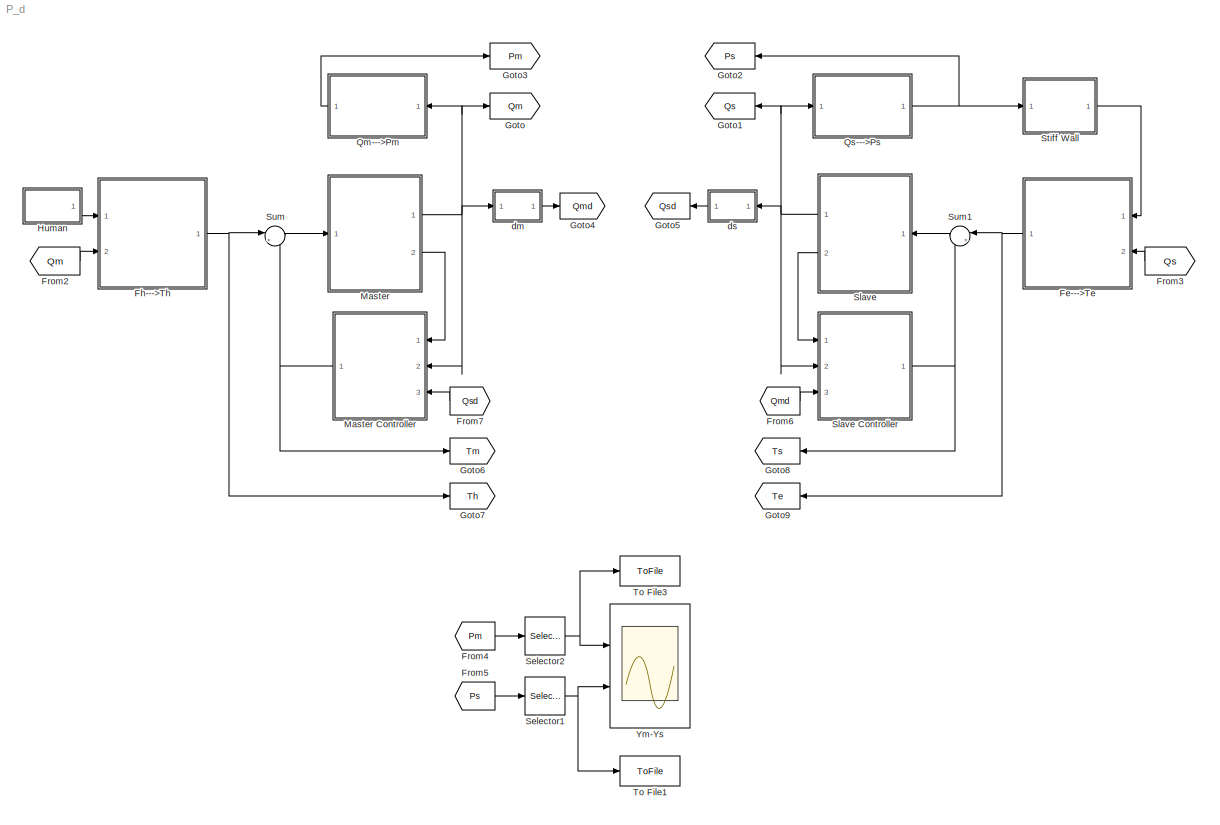
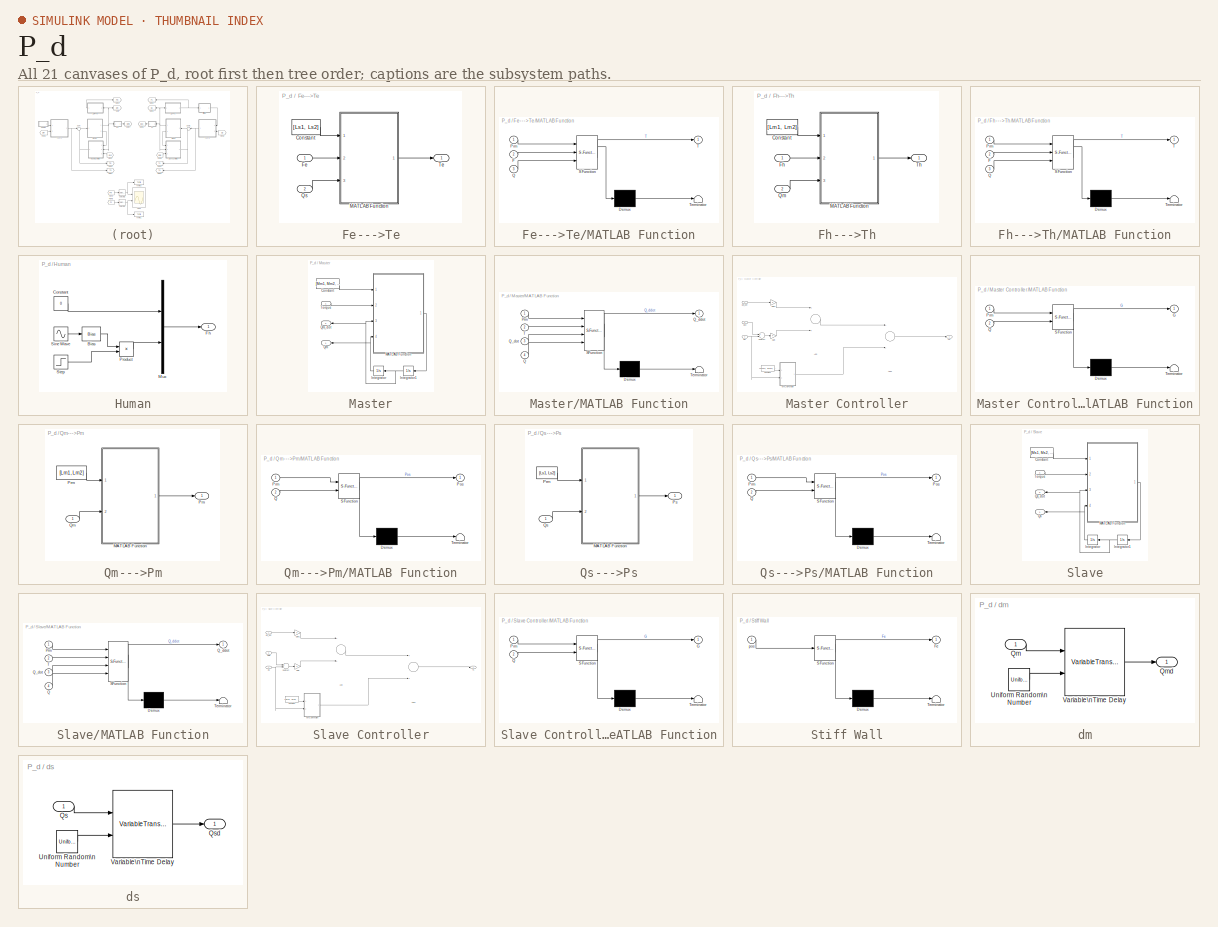
[diagram: thumbnail index - all 21 canvases of the model, root first then tree order]
MODEL P_d
KIND model
BLOCK [SubSystem] Fe--->Te
  Ports = [2, 1]
  RequestExecContextInheritance = off
  SID = 1
  Variant = off
BLOCK [Constant] Fe--->Te/Constant
  SID = 4
  Value = [Ls1, Ls2]
BLOCK [Inport] Fe--->Te/Fe
  IconDisplay = Port number
  SID = 2
BLOCK [SubSystem] Fe--->Te/MATLAB Function
  ErrorFcn = Stateflow.Translate.translate
  PermitHierarchicalResolution = ExplicitOnly
  Ports = [3, 1]
  RequestExecContextInheritance = off
  SFBlockType = MATLAB Function
  SID = 5
  TreatAsAtomicUnit = on
  Variant = off
BLOCK [Demux] Fe--->Te/MATLAB Function/ Demux 
  Outputs = 1
  Ports = [1, 1]
  SID = 5::9
BLOCK [S-Function] Fe--->Te/MATLAB Function/ SFunction 
  EnableBusSupport = on
  FunctionName = sf_sfun
  PortCounts = [3 2]
  Ports = [3, 2]
  SFunctionDeploymentMode = off
  SID = 5::8
  Tag = Stateflow S-Function P_d 7
BLOCK [Terminator] Fe--->Te/MATLAB Function/ Terminator 
  SID = 5::10
BLOCK [Inport] Fe--->Te/MATLAB Function/F
  IconDisplay = Port number
  Port = 2
  SID = 5::2
BLOCK [Inport] Fe--->Te/MATLAB Function/Prm
  IconDisplay = Port number
  SID = 5::1
BLOCK [Inport] Fe--->Te/MATLAB Function/Q
  IconDisplay = Port number
  Port = 3
  SID = 5::3
BLOCK [Outport] Fe--->Te/MATLAB Function/T
  IconDisplay = Port number
  SID = 5::7
BLOCK [Inport] Fe--->Te/Qs
  IconDisplay = Port number
  Port = 2
  SID = 3
BLOCK [Outport] Fe--->Te/Te
  IconDisplay = Port number
  SID = 6
BLOCK [SubSystem] Fh--->Th
  Ports = [2, 1]
  RequestExecContextInheritance = off
  SID = 7
  Variant = off
BLOCK [Constant] Fh--->Th/Constant
  SID = 10
  Value = [Lm1, Lm2]
BLOCK [Inport] Fh--->Th/Fh
  IconDisplay = Port number
  SID = 8
BLOCK [SubSystem] Fh--->Th/MATLAB Function
  ErrorFcn = Stateflow.Translate.translate
  PermitHierarchicalResolution = ExplicitOnly
  Ports = [3, 1]
  RequestExecContextInheritance = off
  SFBlockType = MATLAB Function
  SID = 11
  TreatAsAtomicUnit = on
  Variant = off
BLOCK [Demux] Fh--->Th/MATLAB Function/ Demux 
  Outputs = 1
  Ports = [1, 1]
  SID = 11::9
BLOCK [S-Function] Fh--->Th/MATLAB Function/ SFunction 
  EnableBusSupport = on
  FunctionName = sf_sfun
  PortCounts = [3 2]
  Ports = [3, 2]
  SFunctionDeploymentMode = off
  SID = 11::8
  Tag = Stateflow S-Function P_d 6
BLOCK [Terminator] Fh--->Th/MATLAB Function/ Terminator 
  SID = 11::10
BLOCK [Inport] Fh--->Th/MATLAB Function/F
  IconDisplay = Port number
  Port = 2
  SID = 11::2
BLOCK [Inport] Fh--->Th/MATLAB Function/Prm
  IconDisplay = Port number
  SID = 11::1
BLOCK [Inport] Fh--->Th/MATLAB Function/Q
  IconDisplay = Port number
  Port = 3
  SID = 11::3
BLOCK [Outport] Fh--->Th/MATLAB Function/T
  IconDisplay = Port number
  SID = 11::7
BLOCK [Inport] Fh--->Th/Qm
  IconDisplay = Port number
  Port = 2
  SID = 9
BLOCK [Outport] Fh--->Th/Th
  IconDisplay = Port number
  SID = 12
BLOCK [From] From2
  GotoTag = Qm
  SID = 21
BLOCK [From] From3
  GotoTag = Qs
  SID = 22
BLOCK [From] From4
  GotoTag = Pm
  SID = 23
BLOCK [From] From5
  GotoTag = Ps
  SID = 24
BLOCK [From] From6
  GotoTag = Qmd
  SID = 25
BLOCK [From] From7
  GotoTag = Qsd
  SID = 26
BLOCK [Goto] Goto
  GotoTag = Qm
  SID = 27
BLOCK [Goto] Goto1
  GotoTag = Qs
  SID = 28
BLOCK [Goto] Goto2
  GotoTag = Ps
  SID = 29
BLOCK [Goto] Goto3
  GotoTag = Pm
  SID = 30
BLOCK [Goto] Goto4
  GotoTag = Qmd
  SID = 31
BLOCK [Goto] Goto5
  GotoTag = Qsd
  SID = 32
BLOCK [Goto] Goto6
  GotoTag = Tm
  SID = 33
BLOCK [Goto] Goto7
  GotoTag = Th
  SID = 34
BLOCK [Goto] Goto8
  GotoTag = Ts
  SID = 35
BLOCK [Goto] Goto9
  GotoTag = Te
  SID = 36
BLOCK [SubSystem] Human
  Ports = [0, 1]
  RequestExecContextInheritance = off
  SID = 37
  Variant = off
BLOCK [Bias] Human/Bias
  Bias = 0.1
  SID = 38
  SaturateOnIntegerOverflow = off
BLOCK [Constant] Human/Constant
  SID = 39
  Value = 0
BLOCK [Outport] Human/Fh
  IconDisplay = Port number
  SID = 44
BLOCK [Mux] Human/Mux
  DisplayOption = bar
  Inputs = 2
  Ports = [2, 1]
  SID = 40
BLOCK [Product] Human/Product
  InputSameDT = off
  OutDataTypeStr = Inherit: Inherit via internal rule
  Ports = [2, 1]
  RndMeth = Floor
  SID = 41
  SaturateOnIntegerOverflow = off
BLOCK [Sin] Human/Sine Wave
  Amplitude = 0.4
  Frequency = pi/5
  Ports = [0, 1]
  SID = 42
  SampleTime = 0
BLOCK [Step] Human/Step
  After = 0
  Before = 1
  SID = 43
  SampleTime = 0
  Time = 100
BLOCK [SubSystem] Master
  Ports = [1, 2]
  RequestExecContextInheritance = off
  SID = 45
  Variant = off
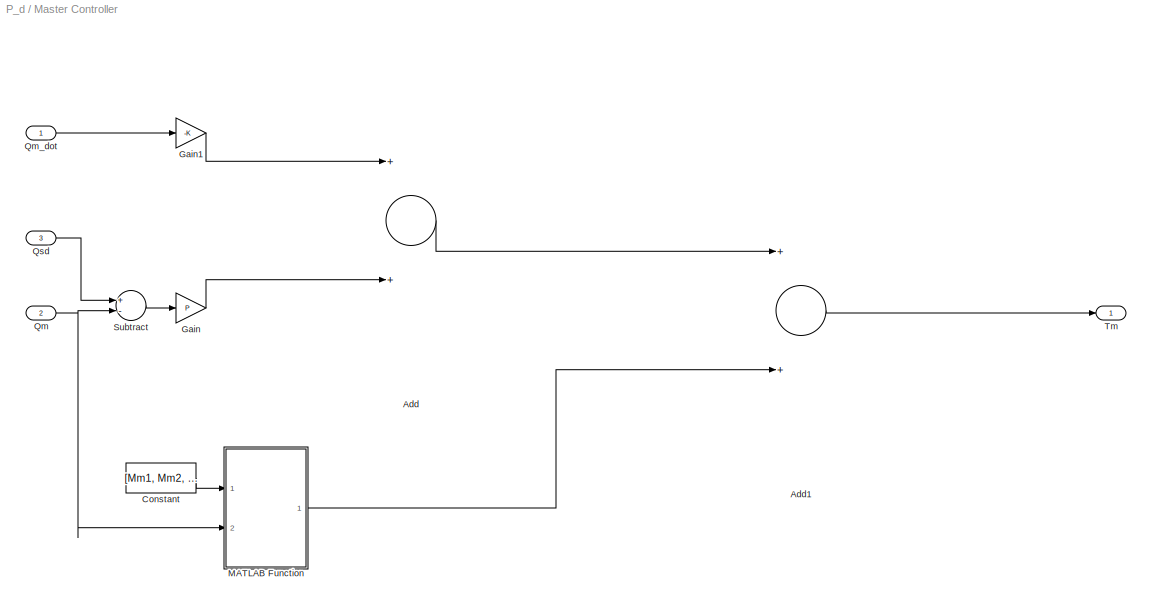
BLOCK [SubSystem] Master Controller
  Ports = [3, 1]
  RequestExecContextInheritance = off
  SID = 53
  Variant = off
BLOCK [Sum] Master Controller/Add
  InputSameDT = off
  OutDataTypeStr = Inherit: Inherit via internal rule
  Ports = [2, 1]
  SID = 57
  SaturateOnIntegerOverflow = off
BLOCK [Sum] Master Controller/Add1
  InputSameDT = off
  OutDataTypeStr = Inherit: Inherit via internal rule
  Ports = [2, 1]
  SID = 58
  SaturateOnIntegerOverflow = off
BLOCK [Constant] Master Controller/Constant
  SID = 59
  Value = [Mm1, Mm2, Lm1, Lm2]
BLOCK [Gain] Master Controller/Gain
  Gain = P
  Multiplication = Matrix(K*u) (u vector)
  OutDataTypeStr = Inherit: Inherit via internal rule
  ParamDataTypeStr = Inherit: Inherit via internal rule
  SID = 63
  SaturateOnIntegerOverflow = off
BLOCK [Gain] Master Controller/Gain1
  Gain = -K
  Multiplication = Matrix(K*u) (u vector)
  OutDataTypeStr = Inherit: Inherit via internal rule
  ParamDataTypeStr = Inherit: Inherit via internal rule
  SID = 64
  SaturateOnIntegerOverflow = off
BLOCK [SubSystem] Master Controller/MATLAB Function
  ErrorFcn = Stateflow.Translate.translate
  PermitHierarchicalResolution = ExplicitOnly
  Ports = [2, 1]
  RequestExecContextInheritance = off
  SFBlockType = MATLAB Function
  SID = 65
  TreatAsAtomicUnit = on
  Variant = off
BLOCK [Demux] Master Controller/MATLAB Function/ Demux 
  Outputs = 1
  Ports = [1, 1]
  SID = 65::17
BLOCK [S-Function] Master Controller/MATLAB Function/ SFunction 
  EnableBusSupport = on
  FunctionName = sf_sfun
  PortCounts = [2 2]
  Ports = [2, 2]
  SFunctionDeploymentMode = off
  SID = 65::16
  Tag = Stateflow S-Function P_d 8
BLOCK [Terminator] Master Controller/MATLAB Function/ Terminator 
  SID = 65::18
BLOCK [Outport] Master Controller/MATLAB Function/G
  IconDisplay = Port number
  SID = 65::5
BLOCK [Inport] Master Controller/MATLAB Function/Prm
  IconDisplay = Port number
  SID = 65::1
BLOCK [Inport] Master Controller/MATLAB Function/Q
  IconDisplay = Port number
  Port = 2
  SID = 65::19
BLOCK [Inport] Master Controller/Qm
  IconDisplay = Port number
  Port = 2
  SID = 55
BLOCK [Inport] Master Controller/Qm_dot
  IconDisplay = Port number
  SID = 54
BLOCK [Inport] Master Controller/Qsd
  IconDisplay = Port number
  Port = 3
  SID = 56
BLOCK [Sum] Master Controller/Subtract
  InputSameDT = off
  Inputs = +-
  OutDataTypeStr = Inherit: Inherit via internal rule
  Ports = [2, 1]
  SID = 75
  SaturateOnIntegerOverflow = off
BLOCK [Outport] Master Controller/Tm
  IconDisplay = Port number
  SID = 82
BLOCK [Constant] Master/Constant
  SID = 47
  Value = [Mm1, Mm2, Lm1, Lm2]
BLOCK [Integrator] Master/Integrator
  InitialCondition = q0
  Ports = [1, 1]
  SID = 48
BLOCK [Integrator] Master/Integrator1
  InitialCondition = v0
  Ports = [1, 1]
  SID = 49
BLOCK [SubSystem] Master/MATLAB Function
  ErrorFcn = Stateflow.Translate.translate
  PermitHierarchicalResolution = ExplicitOnly
  Ports = [4, 1]
  RequestExecContextInheritance = off
  SFBlockType = MATLAB Function
  SID = 50
  TreatAsAtomicUnit = on
  Variant = off
BLOCK [Demux] Master/MATLAB Function/ Demux 
  Outputs = 1
  Ports = [1, 1]
  SID = 50::10
BLOCK [S-Function] Master/MATLAB Function/ SFunction 
  EnableBusSupport = on
  FunctionName = sf_sfun
  PortCounts = [4 2]
  Ports = [4, 2]
  SFunctionDeploymentMode = off
  SID = 50::9
  Tag = Stateflow S-Function P_d 1
BLOCK [Terminator] Master/MATLAB Function/ Terminator 
  SID = 50::11
BLOCK [Inport] Master/MATLAB Function/Prm
  IconDisplay = Port number
  SID = 50::1
BLOCK [Inport] Master/MATLAB Function/Q
  IconDisplay = Port number
  Port = 4
  SID = 50::4
BLOCK [Outport] Master/MATLAB Function/Q_ddot
  IconDisplay = Port number
  SID = 50::8
BLOCK [Inport] Master/MATLAB Function/Q_dot
  IconDisplay = Port number
  Port = 3
  SID = 50::3
BLOCK [Inport] Master/MATLAB Function/T
  IconDisplay = Port number
  Port = 2
  SID = 50::2
BLOCK [Outport] Master/Qm
  IconDisplay = Port number
  SID = 51
BLOCK [Outport] Master/Qm_dot
  IconDisplay = Port number
  Port = 2
  SID = 52
BLOCK [Inport] Master/Torque
  IconDisplay = Port number
  SID = 46
BLOCK [SubSystem] Qm--->Pm
  Ports = [1, 1]
  RequestExecContextInheritance = off
  SID = 83
  Variant = off
BLOCK [SubSystem] Qm--->Pm/MATLAB Function
  ErrorFcn = Stateflow.Translate.translate
  PermitHierarchicalResolution = ExplicitOnly
  Ports = [2, 1]
  RequestExecContextInheritance = off
  SFBlockType = MATLAB Function
  SID = 85
  TreatAsAtomicUnit = on
  Variant = off
BLOCK [Demux] Qm--->Pm/MATLAB Function/ Demux 
  Outputs = 1
  Ports = [1, 1]
  SID = 85::8
BLOCK [S-Function] Qm--->Pm/MATLAB Function/ SFunction 
  EnableBusSupport = on
  FunctionName = sf_sfun
  PortCounts = [2 2]
  Ports = [2, 2]
  SFunctionDeploymentMode = off
  SID = 85::7
  Tag = Stateflow S-Function P_d 4
BLOCK [Terminator] Qm--->Pm/MATLAB Function/ Terminator 
  SID = 85::9
BLOCK [Outport] Qm--->Pm/MATLAB Function/Pos
  IconDisplay = Port number
  SID = 85::6
BLOCK [Inport] Qm--->Pm/MATLAB Function/Prm
  IconDisplay = Port number
  SID = 85::1
BLOCK [Inport] Qm--->Pm/MATLAB Function/Q
  IconDisplay = Port number
  Port = 2
  SID = 85::2
BLOCK [Outport] Qm--->Pm/Pm
  IconDisplay = Port number
  SID = 87
BLOCK [Constant] Qm--->Pm/Prm
  SID = 86
  Value = [Lm1, Lm2]
BLOCK [Inport] Qm--->Pm/Qm
  IconDisplay = Port number
  SID = 84
BLOCK [SubSystem] Qs--->Ps
  Ports = [1, 1]
  RequestExecContextInheritance = off
  SID = 89
  Variant = off
BLOCK [SubSystem] Qs--->Ps/MATLAB Function
  ErrorFcn = Stateflow.Translate.translate
  PermitHierarchicalResolution = ExplicitOnly
  Ports = [2, 1]
  RequestExecContextInheritance = off
  SFBlockType = MATLAB Function
  SID = 91
  TreatAsAtomicUnit = on
  Variant = off
BLOCK [Demux] Qs--->Ps/MATLAB Function/ Demux 
  Outputs = 1
  Ports = [1, 1]
  SID = 91::8
BLOCK [S-Function] Qs--->Ps/MATLAB Function/ SFunction 
  EnableBusSupport = on
  FunctionName = sf_sfun
  PortCounts = [2 2]
  Ports = [2, 2]
  SFunctionDeploymentMode = off
  SID = 91::7
  Tag = Stateflow S-Function P_d 5
BLOCK [Terminator] Qs--->Ps/MATLAB Function/ Terminator 
  SID = 91::9
BLOCK [Outport] Qs--->Ps/MATLAB Function/Pos
  IconDisplay = Port number
  SID = 91::6
BLOCK [Inport] Qs--->Ps/MATLAB Function/Prm
  IconDisplay = Port number
  SID = 91::1
BLOCK [Inport] Qs--->Ps/MATLAB Function/Q
  IconDisplay = Port number
  Port = 2
  SID = 91::2
BLOCK [Constant] Qs--->Ps/Prm
  SID = 92
  Value = [Ls1, Ls2]
BLOCK [Outport] Qs--->Ps/Ps
  IconDisplay = Port number
  SID = 93
BLOCK [Inport] Qs--->Ps/Qs
  IconDisplay = Port number
  SID = 90
BLOCK [Selector] Selector1
  IndexOptions = Index vector (dialog)
  Indices = [2]
  InputPortWidth = 2
  OutputSizes = 1
  Ports = [1, 1]
  SID = 165
BLOCK [Selector] Selector2
  IndexOptions = Index vector (dialog)
  Indices = [2]
  InputPortWidth = 2
  OutputSizes = 1
  Ports = [1, 1]
  SID = 97
BLOCK [SubSystem] Slave
  Ports = [1, 2]
  RequestExecContextInheritance = off
  SID = 102
  Variant = off
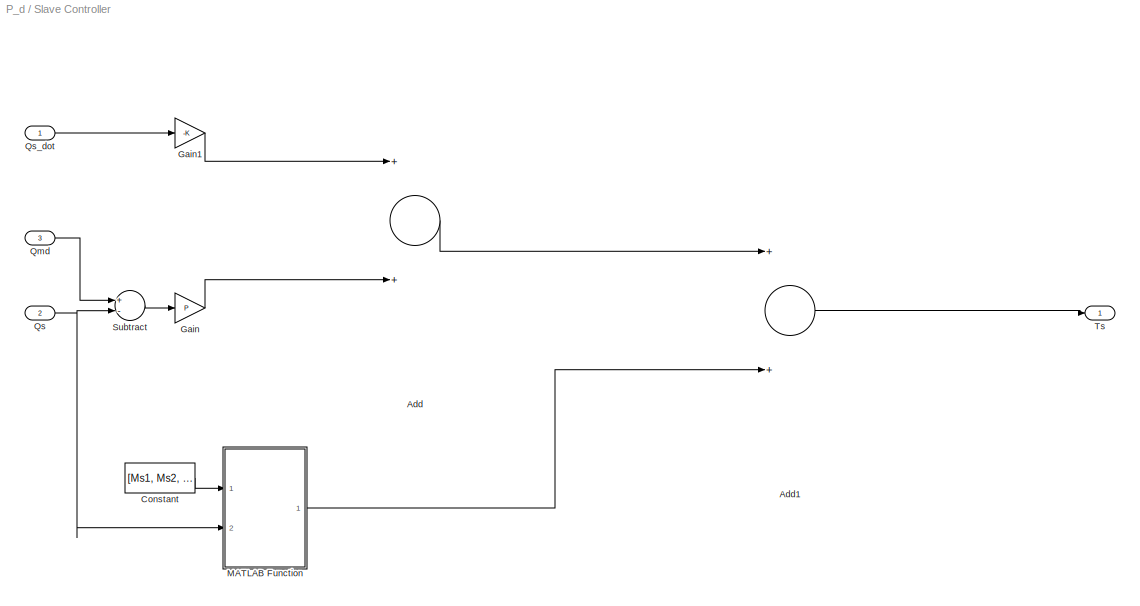
BLOCK [SubSystem] Slave Controller
  Ports = [3, 1]
  RequestExecContextInheritance = off
  SID = 110
  Variant = off
BLOCK [Sum] Slave Controller/Add
  InputSameDT = off
  OutDataTypeStr = Inherit: Inherit via internal rule
  Ports = [2, 1]
  SID = 114
  SaturateOnIntegerOverflow = off
BLOCK [Sum] Slave Controller/Add1
  InputSameDT = off
  OutDataTypeStr = Inherit: Inherit via internal rule
  Ports = [2, 1]
  SID = 115
  SaturateOnIntegerOverflow = off
BLOCK [Constant] Slave Controller/Constant
  SID = 116
  Value = [Ms1, Ms2, Ls1, Ls2]
BLOCK [Gain] Slave Controller/Gain
  Gain = P
  Multiplication = Matrix(K*u) (u vector)
  OutDataTypeStr = Inherit: Inherit via internal rule
  ParamDataTypeStr = Inherit: Inherit via internal rule
  SID = 120
  SaturateOnIntegerOverflow = off
BLOCK [Gain] Slave Controller/Gain1
  Gain = -K
  Multiplication = Matrix(K*u) (u vector)
  OutDataTypeStr = Inherit: Inherit via internal rule
  ParamDataTypeStr = Inherit: Inherit via internal rule
  SID = 121
  SaturateOnIntegerOverflow = off
BLOCK [SubSystem] Slave Controller/MATLAB Function
  ErrorFcn = Stateflow.Translate.translate
  PermitHierarchicalResolution = ExplicitOnly
  Ports = [2, 1]
  RequestExecContextInheritance = off
  SFBlockType = MATLAB Function
  SID = 122
  TreatAsAtomicUnit = on
  Variant = off
BLOCK [Demux] Slave Controller/MATLAB Function/ Demux 
  Outputs = 1
  Ports = [1, 1]
  SID = 122::17
BLOCK [S-Function] Slave Controller/MATLAB Function/ SFunction 
  EnableBusSupport = on
  FunctionName = sf_sfun
  PortCounts = [2 2]
  Ports = [2, 2]
  SFunctionDeploymentMode = off
  SID = 122::16
  Tag = Stateflow S-Function P_d 9
BLOCK [Terminator] Slave Controller/MATLAB Function/ Terminator 
  SID = 122::18
BLOCK [Outport] Slave Controller/MATLAB Function/G
  IconDisplay = Port number
  SID = 122::5
BLOCK [Inport] Slave Controller/MATLAB Function/Prm
  IconDisplay = Port number
  SID = 122::1
BLOCK [Inport] Slave Controller/MATLAB Function/Q
  IconDisplay = Port number
  Port = 2
  SID = 122::19
BLOCK [Inport] Slave Controller/Qmd
  IconDisplay = Port number
  Port = 3
  SID = 113
BLOCK [Inport] Slave Controller/Qs
  IconDisplay = Port number
  Port = 2
  SID = 112
BLOCK [Inport] Slave Controller/Qs_dot
  IconDisplay = Port number
  SID = 111
BLOCK [Sum] Slave Controller/Subtract
  InputSameDT = off
  Inputs = +-
  OutDataTypeStr = Inherit: Inherit via internal rule
  Ports = [2, 1]
  SID = 132
  SaturateOnIntegerOverflow = off
BLOCK [Outport] Slave Controller/Ts
  IconDisplay = Port number
  SID = 139
BLOCK [Constant] Slave/Constant
  SID = 104
  Value = [Ms1, Ms2, Ls1, Ls2]
BLOCK [Integrator] Slave/Integrator
  InitialCondition = q0
  Ports = [1, 1]
  SID = 105
BLOCK [Integrator] Slave/Integrator1
  InitialCondition = v0
  Ports = [1, 1]
  SID = 106
BLOCK [SubSystem] Slave/MATLAB Function
  ErrorFcn = Stateflow.Translate.translate
  PermitHierarchicalResolution = ExplicitOnly
  Ports = [4, 1]
  RequestExecContextInheritance = off
  SFBlockType = MATLAB Function
  SID = 107
  TreatAsAtomicUnit = on
  Variant = off
BLOCK [Demux] Slave/MATLAB Function/ Demux 
  Outputs = 1
  Ports = [1, 1]
  SID = 107::10
BLOCK [S-Function] Slave/MATLAB Function/ SFunction 
  EnableBusSupport = on
  FunctionName = sf_sfun
  PortCounts = [4 2]
  Ports = [4, 2]
  SFunctionDeploymentMode = off
  SID = 107::9
  Tag = Stateflow S-Function P_d 3
BLOCK [Terminator] Slave/MATLAB Function/ Terminator 
  SID = 107::11
BLOCK [Inport] Slave/MATLAB Function/Prm
  IconDisplay = Port number
  SID = 107::1
BLOCK [Inport] Slave/MATLAB Function/Q
  IconDisplay = Port number
  Port = 4
  SID = 107::4
BLOCK [Outport] Slave/MATLAB Function/Q_ddot
  IconDisplay = Port number
  SID = 107::8
BLOCK [Inport] Slave/MATLAB Function/Q_dot
  IconDisplay = Port number
  Port = 3
  SID = 107::3
BLOCK [Inport] Slave/MATLAB Function/T
  IconDisplay = Port number
  Port = 2
  SID = 107::2
BLOCK [Outport] Slave/Qs
  IconDisplay = Port number
  SID = 108
BLOCK [Outport] Slave/Qs_dot
  IconDisplay = Port number
  Port = 2
  SID = 109
BLOCK [Inport] Slave/Torque
  IconDisplay = Port number
  SID = 103
BLOCK [SubSystem] Stiff Wall
  ErrorFcn = Stateflow.Translate.translate
  PermitHierarchicalResolution = ExplicitOnly
  Ports = [1, 1]
  RequestExecContextInheritance = off
  SFBlockType = MATLAB Function
  SID = 140
  TreatAsAtomicUnit = on
  Variant = off
BLOCK [Demux] Stiff Wall/ Demux 
  Outputs = 1
  Ports = [1, 1]
  SID = 140::7
BLOCK [S-Function] Stiff Wall/ SFunction 
  EnableBusSupport = on
  FunctionName = sf_sfun
  PortCounts = [1 2]
  Ports = [1, 2]
  SFunctionDeploymentMode = off
  SID = 140::6
  Tag = Stateflow S-Function P_d 2
BLOCK [Terminator] Stiff Wall/ Terminator 
  SID = 140::8
BLOCK [Outport] Stiff Wall/Fe
  IconDisplay = Port number
  SID = 140::5
BLOCK [Inport] Stiff Wall/pos
  IconDisplay = Port number
  SID = 140::1
BLOCK [Sum] Sum
  IconShape = round
  InputSameDT = off
  Inputs = |++
  OutDataTypeStr = Inherit: Inherit via internal rule
  Ports = [2, 1]
  SID = 141
  SaturateOnIntegerOverflow = off
BLOCK [Sum] Sum1
  IconShape = round
  InputSameDT = off
  Inputs = |++
  OutDataTypeStr = Inherit: Inherit via internal rule
  Ports = [2, 1]
  SID = 142
  SaturateOnIntegerOverflow = off
BLOCK [ToFile] To File1
  Filename = Yss.mat
  MatrixName = Yss
  Ports = [1]
  SID = 166
  SaveFormat = Timeseries
BLOCK [ToFile] To File3
  Filename = Yms.mat
  MatrixName = Yms
  Ports = [1]
  SID = 148
  SaveFormat = Timeseries
BLOCK [Scope] Ym-Ys
  NumInputPorts = 2
  Ports = [2]
  SID = 154
  ScopeSpecificationString = C++SS(StrPVP('SaveName','ScopeData5'))
BLOCK [SubSystem] dm
  Ports = [1, 1]
  RequestExecContextInheritance = off
  SID = 155
  Variant = off
BLOCK [Inport] dm/Qm
  IconDisplay = Port number
  SID = 156
BLOCK [Outport] dm/Qmd
  IconDisplay = Port number
  SID = 159
BLOCK [UniformRandomNumber] dm/Uniform Random\nNumber
  Maximum = Dm
  Minimum = 0
  SID = 157
  SampleTime = 0.1
BLOCK [VariableTransportDelay] dm/Variable\nTime Delay
  MaximumDelay = Dm
  Ports = [2, 1]
  SID = 158
BLOCK [SubSystem] ds
  Ports = [1, 1]
  RequestExecContextInheritance = off
  SID = 160
  Variant = off
BLOCK [Inport] ds/Qs
  IconDisplay = Port number
  SID = 161
BLOCK [Outport] ds/Qsd
  IconDisplay = Port number
  SID = 164
BLOCK [UniformRandomNumber] ds/Uniform Random\nNumber
  Maximum = Ds
  Minimum = 0
  SID = 162
  SampleTime = 0.1
BLOCK [VariableTransportDelay] ds/Variable\nTime Delay
  MaximumDelay = Ds
  Ports = [2, 1]
  SID = 163
LINE Fe--->Te/Constant:1 -> Fe--->Te/MATLAB Function:1
LINE Fe--->Te/Fe:1 -> Fe--->Te/MATLAB Function:2
LINE Fe--->Te/MATLAB Function/ Demux :1 -> Fe--->Te/MATLAB Function/ Terminator :1
LINE Fe--->Te/MATLAB Function/ SFunction :1 -> Fe--->Te/MATLAB Function/ Demux :1
LINE Fe--->Te/MATLAB Function/ SFunction :2 -> Fe--->Te/MATLAB Function/T:1
LINE Fe--->Te/MATLAB Function/F:1 -> Fe--->Te/MATLAB Function/ SFunction :2
LINE Fe--->Te/MATLAB Function/Prm:1 -> Fe--->Te/MATLAB Function/ SFunction :1
LINE Fe--->Te/MATLAB Function/Q:1 -> Fe--->Te/MATLAB Function/ SFunction :3
LINE Fe--->Te/MATLAB Function:1 -> Fe--->Te/Te:1
LINE Fe--->Te/Qs:1 -> Fe--->Te/MATLAB Function:3
NET Fe--->Te:1 -> Goto9:1, Sum1:1
LINE Fh--->Th/Constant:1 -> Fh--->Th/MATLAB Function:1
LINE Fh--->Th/Fh:1 -> Fh--->Th/MATLAB Function:2
LINE Fh--->Th/MATLAB Function/ Demux :1 -> Fh--->Th/MATLAB Function/ Terminator :1
LINE Fh--->Th/MATLAB Function/ SFunction :1 -> Fh--->Th/MATLAB Function/ Demux :1
LINE Fh--->Th/MATLAB Function/ SFunction :2 -> Fh--->Th/MATLAB Function/T:1
LINE Fh--->Th/MATLAB Function/F:1 -> Fh--->Th/MATLAB Function/ SFunction :2
LINE Fh--->Th/MATLAB Function/Prm:1 -> Fh--->Th/MATLAB Function/ SFunction :1
LINE Fh--->Th/MATLAB Function/Q:1 -> Fh--->Th/MATLAB Function/ SFunction :3
LINE Fh--->Th/MATLAB Function:1 -> Fh--->Th/Th:1
LINE Fh--->Th/Qm:1 -> Fh--->Th/MATLAB Function:3
NET Fh--->Th:1 -> Goto7:1, Sum:1
LINE From2:1 -> Fh--->Th:2
LINE From3:1 -> Fe--->Te:2
LINE From4:1 -> Selector2:1
LINE From5:1 -> Selector1:1
LINE From6:1 -> Slave Controller:3
LINE From7:1 -> Master Controller:3
LINE Human/Bias:1 -> Human/Product:1
LINE Human/Constant:1 -> Human/Mux:1
LINE Human/Mux:1 -> Human/Fh:1
LINE Human/Product:1 -> Human/Mux:2
LINE Human/Sine Wave:1 -> Human/Bias:1
LINE Human/Step:1 -> Human/Product:2
LINE Human:1 -> Fh--->Th:1
LINE Master Controller/Add1:1 -> Master Controller/Tm:1
LINE Master Controller/Add:1 -> Master Controller/Add1:1
LINE Master Controller/Constant:1 -> Master Controller/MATLAB Function:1
LINE Master Controller/Gain1:1 -> Master Controller/Add:1
LINE Master Controller/Gain:1 -> Master Controller/Add:2
LINE Master Controller/MATLAB Function/ Demux :1 -> Master Controller/MATLAB Function/ Terminator :1
LINE Master Controller/MATLAB Function/ SFunction :1 -> Master Controller/MATLAB Function/ Demux :1
LINE Master Controller/MATLAB Function/ SFunction :2 -> Master Controller/MATLAB Function/G:1
LINE Master Controller/MATLAB Function/Prm:1 -> Master Controller/MATLAB Function/ SFunction :1
LINE Master Controller/MATLAB Function/Q:1 -> Master Controller/MATLAB Function/ SFunction :2
LINE Master Controller/MATLAB Function:1 -> Master Controller/Add1:2
NET Master Controller/Qm:1 -> Master Controller/MATLAB Function:2, Master Controller/Subtract:2
LINE Master Controller/Qm_dot:1 -> Master Controller/Gain1:1
LINE Master Controller/Qsd:1 -> Master Controller/Subtract:1
LINE Master Controller/Subtract:1 -> Master Controller/Gain:1
NET Master Controller:1 -> Goto6:1, Sum:2
LINE Master/Constant:1 -> Master/MATLAB Function:1
NET Master/Integrator1:1 -> Master/Integrator:1, Master/MATLAB Function:3, Master/Qm_dot:1
NET Master/Integrator:1 -> Master/MATLAB Function:4, Master/Qm:1
LINE Master/MATLAB Function/ Demux :1 -> Master/MATLAB Function/ Terminator :1
LINE Master/MATLAB Function/ SFunction :1 -> Master/MATLAB Function/ Demux :1
LINE Master/MATLAB Function/ SFunction :2 -> Master/MATLAB Function/Q_ddot:1
LINE Master/MATLAB Function/Prm:1 -> Master/MATLAB Function/ SFunction :1
LINE Master/MATLAB Function/Q:1 -> Master/MATLAB Function/ SFunction :4
LINE Master/MATLAB Function/Q_dot:1 -> Master/MATLAB Function/ SFunction :3
LINE Master/MATLAB Function/T:1 -> Master/MATLAB Function/ SFunction :2
LINE Master/MATLAB Function:1 -> Master/Integrator1:1
LINE Master/Torque:1 -> Master/MATLAB Function:2
NET Master:1 -> Goto:1, Master Controller:2, Qm--->Pm:1, dm:1
LINE Master:2 -> Master Controller:1
LINE Qm--->Pm/MATLAB Function/ Demux :1 -> Qm--->Pm/MATLAB Function/ Terminator :1
LINE Qm--->Pm/MATLAB Function/ SFunction :1 -> Qm--->Pm/MATLAB Function/ Demux :1
LINE Qm--->Pm/MATLAB Function/ SFunction :2 -> Qm--->Pm/MATLAB Function/Pos:1
LINE Qm--->Pm/MATLAB Function/Prm:1 -> Qm--->Pm/MATLAB Function/ SFunction :1
LINE Qm--->Pm/MATLAB Function/Q:1 -> Qm--->Pm/MATLAB Function/ SFunction :2
LINE Qm--->Pm/MATLAB Function:1 -> Qm--->Pm/Pm:1
LINE Qm--->Pm/Prm:1 -> Qm--->Pm/MATLAB Function:1
LINE Qm--->Pm/Qm:1 -> Qm--->Pm/MATLAB Function:2
LINE Qm--->Pm:1 -> Goto3:1
LINE Qs--->Ps/MATLAB Function/ Demux :1 -> Qs--->Ps/MATLAB Function/ Terminator :1
LINE Qs--->Ps/MATLAB Function/ SFunction :1 -> Qs--->Ps/MATLAB Function/ Demux :1
LINE Qs--->Ps/MATLAB Function/ SFunction :2 -> Qs--->Ps/MATLAB Function/Pos:1
LINE Qs--->Ps/MATLAB Function/Prm:1 -> Qs--->Ps/MATLAB Function/ SFunction :1
LINE Qs--->Ps/MATLAB Function/Q:1 -> Qs--->Ps/MATLAB Function/ SFunction :2
LINE Qs--->Ps/MATLAB Function:1 -> Qs--->Ps/Ps:1
LINE Qs--->Ps/Prm:1 -> Qs--->Ps/MATLAB Function:1
LINE Qs--->Ps/Qs:1 -> Qs--->Ps/MATLAB Function:2
NET Qs--->Ps:1 -> Goto2:1, Stiff Wall:1
NET Selector1:1 -> To File1:1, Ym-Ys:2
NET Selector2:1 -> To File3:1, Ym-Ys:1
LINE Slave Controller/Add1:1 -> Slave Controller/Ts:1
LINE Slave Controller/Add:1 -> Slave Controller/Add1:1
LINE Slave Controller/Constant:1 -> Slave Controller/MATLAB Function:1
LINE Slave Controller/Gain1:1 -> Slave Controller/Add:1
LINE Slave Controller/Gain:1 -> Slave Controller/Add:2
LINE Slave Controller/MATLAB Function/ Demux :1 -> Slave Controller/MATLAB Function/ Terminator :1
LINE Slave Controller/MATLAB Function/ SFunction :1 -> Slave Controller/MATLAB Function/ Demux :1
LINE Slave Controller/MATLAB Function/ SFunction :2 -> Slave Controller/MATLAB Function/G:1
LINE Slave Controller/MATLAB Function/Prm:1 -> Slave Controller/MATLAB Function/ SFunction :1
LINE Slave Controller/MATLAB Function/Q:1 -> Slave Controller/MATLAB Function/ SFunction :2
LINE Slave Controller/MATLAB Function:1 -> Slave Controller/Add1:2
LINE Slave Controller/Qmd:1 -> Slave Controller/Subtract:1
NET Slave Controller/Qs:1 -> Slave Controller/MATLAB Function:2, Slave Controller/Subtract:2
LINE Slave Controller/Qs_dot:1 -> Slave Controller/Gain1:1
LINE Slave Controller/Subtract:1 -> Slave Controller/Gain:1
NET Slave Controller:1 -> Goto8:1, Sum1:2
LINE Slave/Constant:1 -> Slave/MATLAB Function:1
NET Slave/Integrator1:1 -> Slave/Integrator:1, Slave/MATLAB Function:3, Slave/Qs_dot:1
NET Slave/Integrator:1 -> Slave/MATLAB Function:4, Slave/Qs:1
LINE Slave/MATLAB Function/ Demux :1 -> Slave/MATLAB Function/ Terminator :1
LINE Slave/MATLAB Function/ SFunction :1 -> Slave/MATLAB Function/ Demux :1
LINE Slave/MATLAB Function/ SFunction :2 -> Slave/MATLAB Function/Q_ddot:1
LINE Slave/MATLAB Function/Prm:1 -> Slave/MATLAB Function/ SFunction :1
LINE Slave/MATLAB Function/Q:1 -> Slave/MATLAB Function/ SFunction :4
LINE Slave/MATLAB Function/Q_dot:1 -> Slave/MATLAB Function/ SFunction :3
LINE Slave/MATLAB Function/T:1 -> Slave/MATLAB Function/ SFunction :2
LINE Slave/MATLAB Function:1 -> Slave/Integrator1:1
LINE Slave/Torque:1 -> Slave/MATLAB Function:2
NET Slave:1 -> Goto1:1, Qs--->Ps:1, Slave Controller:2, ds:1
LINE Slave:2 -> Slave Controller:1
LINE Stiff Wall/ Demux :1 -> Stiff Wall/ Terminator :1
LINE Stiff Wall/ SFunction :1 -> Stiff Wall/ Demux :1
LINE Stiff Wall/ SFunction :2 -> Stiff Wall/Fe:1
LINE Stiff Wall/pos:1 -> Stiff Wall/ SFunction :1
LINE Stiff Wall:1 -> Fe--->Te:1
LINE Sum1:1 -> Slave:1
LINE Sum:1 -> Master:1
LINE dm/Qm:1 -> dm/Variable\nTime Delay:1
LINE dm/Uniform Random\nNumber:1 -> dm/Variable\nTime Delay:2
LINE dm/Variable\nTime Delay:1 -> dm/Qmd:1
LINE dm:1 -> Goto4:1
LINE ds/Qs:1 -> ds/Variable\nTime Delay:1
LINE ds/Uniform Random\nNumber:1 -> ds/Variable\nTime Delay:2
LINE ds/Variable\nTime Delay:1 -> ds/Qsd:1
LINE ds:1 -> Goto5:1
note: NET lines group one-source signal fan-out (src -> all destinations, sorted); 1:1 wires keep LINE
CHART Master/MATLAB Function states=1 transitions=1
  STATE_LABEL 'eML_blk_kernel()'
CHART Stiff Wall states=1 transitions=1
  STATE_LABEL 'eML_blk_kernel()'
CHART Slave/MATLAB Function states=1 transitions=1
  STATE_LABEL 'eML_blk_kernel()'
CHART Qm--->Pm/MATLAB Function states=1 transitions=1
  STATE_LABEL 'eML_blk_kernel()'
CHART Qs--->Ps/MATLAB Function states=1 transitions=1
  STATE_LABEL 'eML_blk_kernel()'
CHART Fh--->Th/MATLAB Function states=1 transitions=1
  STATE_LABEL 'eML_blk_kernel()'
CHART Fe--->Te/MATLAB Function states=1 transitions=1
  STATE_LABEL 'eML_blk_kernel()'
CHART Master Controller/MATLAB Function states=1 transitions=1
  STATE_LABEL 'eML_blk_kernel()'
CHART Slave Controller/MATLAB Function states=1 transitions=1
  STATE_LABEL 'eML_blk_kernel()'
